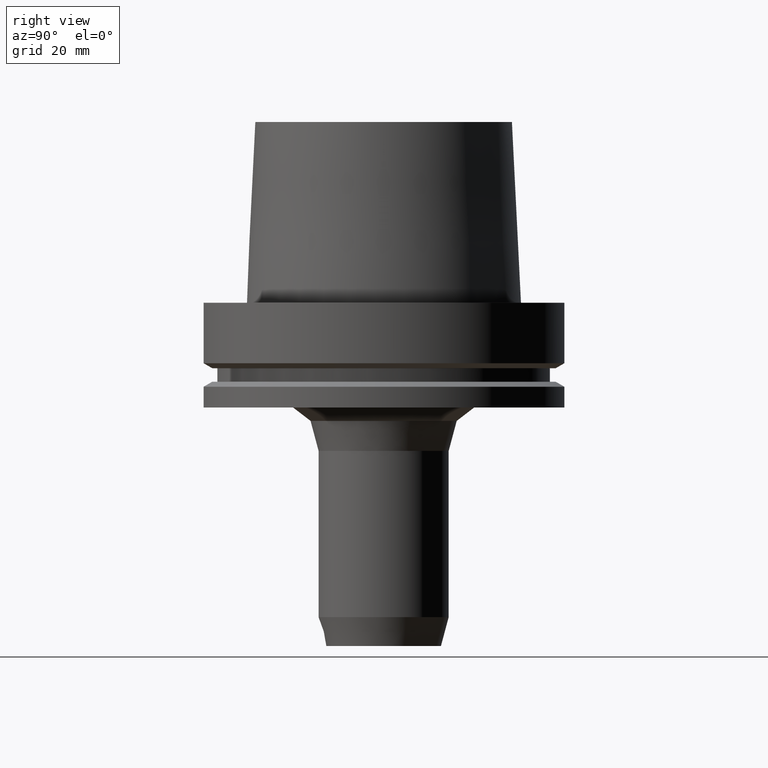
[diagram: clean part render]
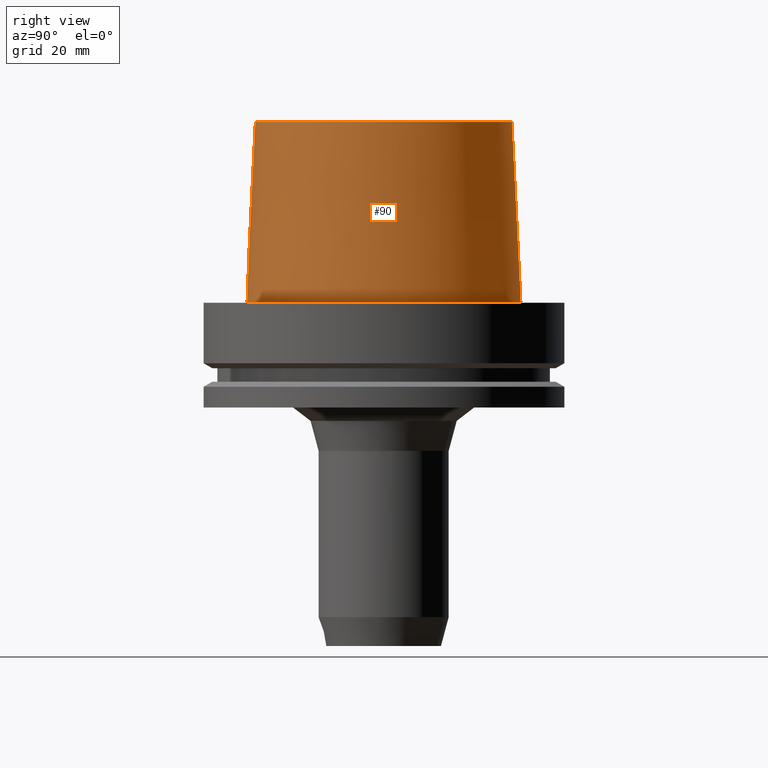
[diagram: same view with one face highlighted and labeled with its STEP entity id]
A machine part, right view. The second image highlights one B-rep face of the part: STEP entity #90.
In plain terms, the highlighted conical surface has half-angle 2.862 deg.
Its self-contained STEP definition (entity closure, byte-faithful):
#90=ADVANCED_FACE('',(#135,#136),#137,.T.);
#135=FACE_BOUND('',#181,.T.);
#136=FACE_BOUND('',#182,.T.);
#137=CONICAL_SURFACE('',#183,36.7500000007484,0.0499583956894865);
#181=EDGE_LOOP('',(#257));
#182=EDGE_LOOP('',(#258));
#183=AXIS2_PLACEMENT_3D('',#259,#260,#261);
#257=ORIENTED_EDGE('',*,*,#273,.F.);
#258=ORIENTED_EDGE('',*,*,#276,.T.);
#259=CARTESIAN_POINT('',(-1.53080849893419E-015,-3.06161699786838E-015,25.0));
#260=DIRECTION('',(6.12323399573677E-017,1.22464679914735E-016,-1.0));
#261=DIRECTION('',(-1.23259516440783E-032,1.0,1.22464679914735E-016));
#273=EDGE_CURVE('',#299,#299,#300,.T.);
#276=EDGE_CURVE('',#305,#305,#306,.T.);
#299=VERTEX_POINT('',#329);
#300=CIRCLE('',#330,37.9999999999349);
#305=VERTEX_POINT('',#335);
#306=CIRCLE('',#336,35.5000000015618);
#329=CARTESIAN_POINT('',(-4.68386162474174E-031,37.9999999999349,4.65365783675197E-015));
#330=AXIS2_PLACEMENT_3D('',#370,#371,#372);
#335=CARTESIAN_POINT('',(-3.06161699786838E-015,35.5000000015618,50.0));
#336=AXIS2_PLACEMENT_3D('',#379,#380,#381);
#370=CARTESIAN_POINT('',(0.0,0.0,0.0));
#371=DIRECTION('',(6.12323399573677E-017,1.22464679914735E-016,-1.0));
#372=DIRECTION('',(-1.23259516440783E-032,1.0,1.22464679914735E-016));
#379=CARTESIAN_POINT('',(-3.06161699786838E-015,-6.12323399573676E-015,50.0));
#380=DIRECTION('',(6.12323399573677E-017,1.22464679914735E-016,-1.0));
#381=DIRECTION('',(-1.23259516440783E-032,1.0,1.22464679914735E-016));